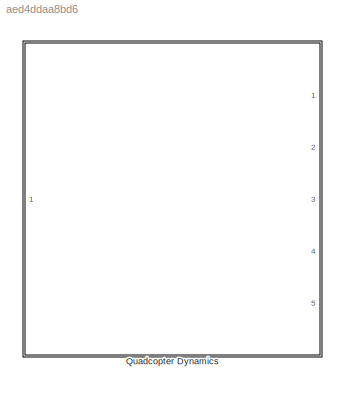
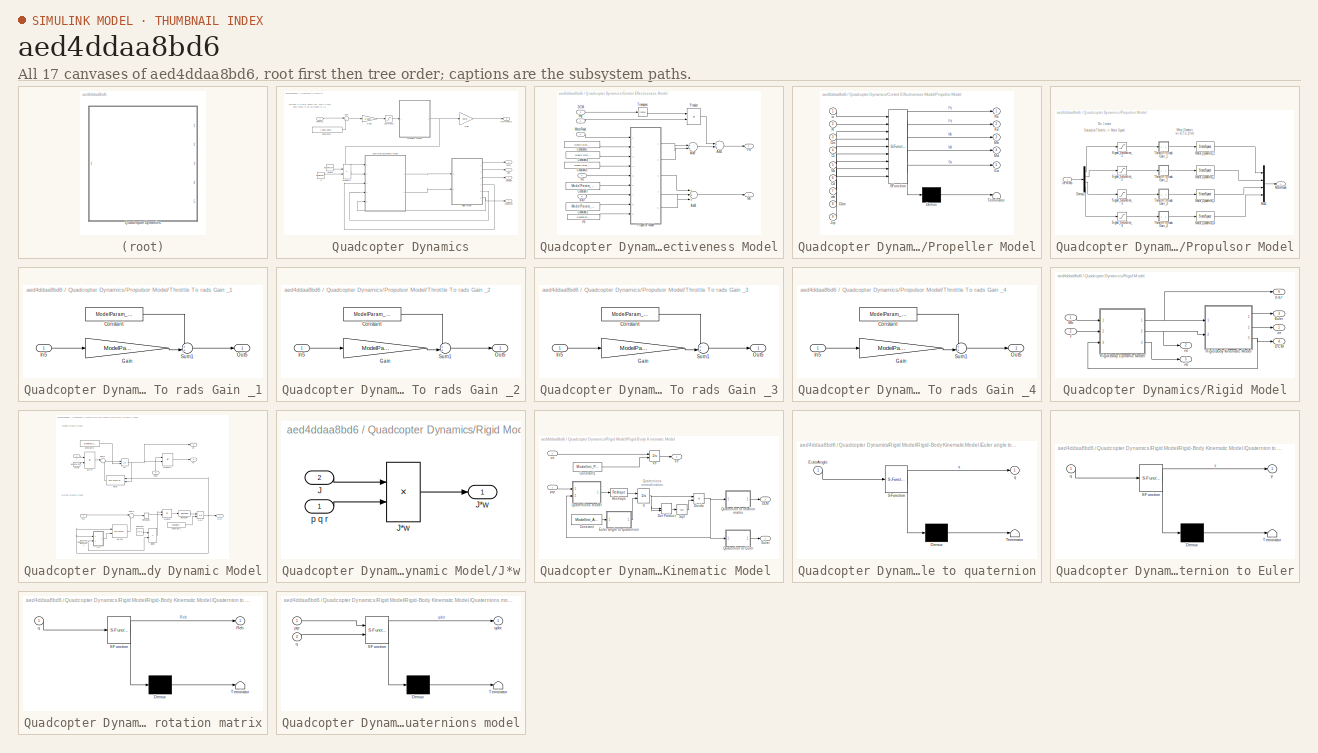
[diagram: thumbnail index - all 17 canvases of the model, root first then tree order]
MODEL slx_aed4ddaa8bd6
KIND model
CONFIG AbsTol = auto
CONFIG EnableMultiTasking = off
CONFIG FixedStep = auto
CONFIG MaxStep = auto
CONFIG MinStep = auto
CONFIG RelTol = 1e-3
CONFIG SampleTimeConstraint = Unconstrained
CONFIG Solver = VariableStepAuto
CONFIG SolverName = VariableStepAuto
CONFIG StartTime = 0.0
CONFIG StopTime = 10.0
BLOCK [SubSystem] Quadcopter Dynamics
  Ports = [1, 5]
  RequestExecContextInheritance = off
  Variant = off
BLOCK [Outport] Quadcopter Dynamics/AngEuler
  IconDisplay = Port number
  Port = 3
BLOCK [Outport] Quadcopter Dynamics/AngRateB
  IconDisplay = Port number
  Port = 4
BLOCK [Constant] Quadcopter Dynamics/Constant2
  Value = [1000,1000,1000,1000]
BLOCK [SubSystem] Quadcopter Dynamics/Control Effectiveness Model
  Ports = [5, 2]
  RequestExecContextInheritance = off
  Variant = off
BLOCK [Sum] Quadcopter Dynamics/Control Effectiveness Model/Add1
  InputSameDT = off
  Inputs = +++
  OutDataTypeStr = Inherit: Inherit via internal rule
  Ports = [3, 1]
  SaturateOnIntegerOverflow = off
BLOCK [Sum] Quadcopter Dynamics/Control Effectiveness Model/Add2
  InputSameDT = off
  OutDataTypeStr = Inherit: Inherit via internal rule
  Ports = [2, 1]
  SaturateOnIntegerOverflow = off
BLOCK [Sum] Quadcopter Dynamics/Control Effectiveness Model/Add7
  InputSameDT = off
  OutDataTypeStr = Inherit: Inherit via internal rule
  Ports = [2, 1]
  SaturateOnIntegerOverflow = off
BLOCK [Constant] Quadcopter Dynamics/Control Effectiveness Model/Constant1
  Value = ModelParam_uavCCm
BLOCK [Constant] Quadcopter Dynamics/Control Effectiveness Model/Constant3
  Value = ModelParam_rotorCt
BLOCK [Constant] Quadcopter Dynamics/Control Effectiveness Model/Constant4
  Value = ModelParam_rotorCm
BLOCK [Constant] Quadcopter Dynamics/Control Effectiveness Model/Constant5
  Value = ModelParam_uavR
BLOCK [Constant] Quadcopter Dynamics/Control Effectiveness Model/Constant7
  Value = ModelParam_uavCd
BLOCK [Inport] Quadcopter Dynamics/Control Effectiveness Model/DCM
  IconDisplay = Port number
  Port = 3
BLOCK [Outport] Quadcopter Dynamics/Control Effectiveness Model/Fb
  IconDisplay = Port number
  Port = 2
BLOCK [Constant] Quadcopter Dynamics/Control Effectiveness Model/Jrp
  Value = ModelParam_motorJm
BLOCK [Outport] Quadcopter Dynamics/Control Effectiveness Model/Mb
  IconDisplay = Port number
BLOCK [Inport] Quadcopter Dynamics/Control Effectiveness Model/MotorRads
  IconDisplay = Port number
BLOCK [Product] Quadcopter Dynamics/Control Effectiveness Model/Product
  InputSameDT = off
  Multiplication = Matrix(*)
  OutDataTypeStr = Inherit: Inherit via internal rule
  Ports = [2, 1]
  RndMeth = Floor
  SaturateOnIntegerOverflow = off
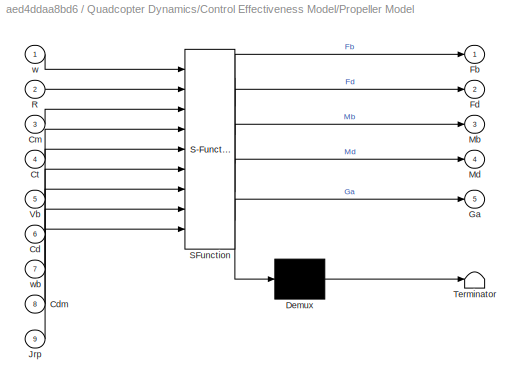
BLOCK [SubSystem] Quadcopter Dynamics/Control Effectiveness Model/Propeller Model
  ErrorFcn = Stateflow.Translate.translate
  PermitHierarchicalResolution = ExplicitOnly
  Ports = [9, 5]
  RequestExecContextInheritance = off
  SFBlockType = MATLAB Function
  TreatAsAtomicUnit = on
  Variant = off
BLOCK [Demux] Quadcopter Dynamics/Control Effectiveness Model/Propeller Model/ Demux 
  Outputs = 1
  Ports = [1, 1]
BLOCK [S-Function] Quadcopter Dynamics/Control Effectiveness Model/Propeller Model/ SFunction 
  EnableBusSupport = on
  FunctionName = sf_sfun
  PortCounts = [9 6]
  Ports = [9, 6]
  SFcnIsStateOwnerBlock = off
  SFunctionDeploymentMode = off
  Tag = Stateflow S-Function dynamics 13
BLOCK [Terminator] Quadcopter Dynamics/Control Effectiveness Model/Propeller Model/ Terminator 
BLOCK [Inport] Quadcopter Dynamics/Control Effectiveness Model/Propeller Model/Cd
  IconDisplay = Port number
  Port = 6
BLOCK [Inport] Quadcopter Dynamics/Control Effectiveness Model/Propeller Model/Cdm
  IconDisplay = Port number
  Port = 8
BLOCK [Inport] Quadcopter Dynamics/Control Effectiveness Model/Propeller Model/Cm
  IconDisplay = Port number
  Port = 3
BLOCK [Inport] Quadcopter Dynamics/Control Effectiveness Model/Propeller Model/Ct
  IconDisplay = Port number
  Port = 4
BLOCK [Outport] Quadcopter Dynamics/Control Effectiveness Model/Propeller Model/Fb
  IconDisplay = Port number
BLOCK [Outport] Quadcopter Dynamics/Control Effectiveness Model/Propeller Model/Fd
  IconDisplay = Port number
  Port = 2
BLOCK [Outport] Quadcopter Dynamics/Control Effectiveness Model/Propeller Model/Ga
  IconDisplay = Port number
  Port = 5
BLOCK [Inport] Quadcopter Dynamics/Control Effectiveness Model/Propeller Model/Jrp
  IconDisplay = Port number
  Port = 9
BLOCK [Outport] Quadcopter Dynamics/Control Effectiveness Model/Propeller Model/Mb
  IconDisplay = Port number
  Port = 3
BLOCK [Outport] Quadcopter Dynamics/Control Effectiveness Model/Propeller Model/Md
  IconDisplay = Port number
  Port = 4
BLOCK [Inport] Quadcopter Dynamics/Control Effectiveness Model/Propeller Model/R
  IconDisplay = Port number
  Port = 2
BLOCK [Inport] Quadcopter Dynamics/Control Effectiveness Model/Propeller Model/Vb
  IconDisplay = Port number
  Port = 5
BLOCK [Inport] Quadcopter Dynamics/Control Effectiveness Model/Propeller Model/w
  IconDisplay = Port number
BLOCK [Inport] Quadcopter Dynamics/Control Effectiveness Model/Propeller Model/wb
  IconDisplay = Port number
  Port = 7
BLOCK [Math] Quadcopter Dynamics/Control Effectiveness Model/Transpose
  Operator = transpose
  Ports = [1, 1]
BLOCK [Inport] Quadcopter Dynamics/Control Effectiveness Model/Vb
  IconDisplay = Port number
  Port = 4
BLOCK [Inport] Quadcopter Dynamics/Control Effectiveness Model/mg
  IconDisplay = Port number
  Port = 2
BLOCK [Inport] Quadcopter Dynamics/Control Effectiveness Model/p.q,r
  IconDisplay = Port number
  Port = 5
BLOCK [Gain] Quadcopter Dynamics/Gain
  Gain = 30/pi
  OutDataTypeStr = Inherit: Inherit via internal rule
  ParamDataTypeStr = Inherit: Inherit via internal rule
  SaturateOnIntegerOverflow = off
BLOCK [Gain] Quadcopter Dynamics/Gain1
  Gain = 1/1000
  OutDataTypeStr = Inherit: Inherit via internal rule
  ParamDataTypeStr = Inherit: Inherit via internal rule
  SaturateOnIntegerOverflow = off
BLOCK [Outport] Quadcopter Dynamics/MotorRPMS
  IconDisplay = Port number
  Port = 5
BLOCK [Outport] Quadcopter Dynamics/PosE
  IconDisplay = Port number
BLOCK [Product] Quadcopter Dynamics/Product1
  InputSameDT = off
  OutDataTypeStr = Inherit: Inherit via internal rule
  Ports = [2, 1]
  RndMeth = Floor
  SaturateOnIntegerOverflow = off
BLOCK [SubSystem] Quadcopter Dynamics/Propulsor Model
  Ports = [1, 1]
  RequestExecContextInheritance = off
  Variant = off
BLOCK [Demux] Quadcopter Dynamics/Propulsor Model/Demux1
  DisplayOption = bar
  Ports = [1, 4]
BLOCK [Outport] Quadcopter Dynamics/Propulsor Model/MotorRads
  IconDisplay = Port number
BLOCK [StateSpace] Quadcopter Dynamics/Propulsor Model/Motor_Dynamics_1
  A = -1/ModelParam_motorT
  C = 1/ModelParam_motorT
  D = 0
  InitialCondition = ModelInit_Rads*ModelParam_motorT
  Ports = [1, 1]
BLOCK [StateSpace] Quadcopter Dynamics/Propulsor Model/Motor_Dynamics_2
  A = -1/ModelParam_motorT
  C = 1/ModelParam_motorT
  D = 0
  InitialCondition = ModelInit_Rads*ModelParam_motorT
  Ports = [1, 1]
BLOCK [StateSpace] Quadcopter Dynamics/Propulsor Model/Motor_Dynamics_3
  A = -1/ModelParam_motorT
  C = 1/ModelParam_motorT
  D = 0
  InitialCondition = ModelInit_Rads*ModelParam_motorT
  Ports = [1, 1]
BLOCK [StateSpace] Quadcopter Dynamics/Propulsor Model/Motor_Dynamics_4
  A = -1/ModelParam_motorT
  C = 1/ModelParam_motorT
  D = 0
  InitialCondition = ModelInit_Rads*ModelParam_motorT
  Ports = [1, 1]
BLOCK [Mux] Quadcopter Dynamics/Propulsor Model/Mux1
  DisplayOption = bar
  Ports = [4, 1]
BLOCK [Saturate] Quadcopter Dynamics/Propulsor Model/Signal_Saturation_1
  InputPortMap = u0
  LowerLimit = 0
  Ports = [1, 1]
  UpperLimit = 1
BLOCK [Saturate] Quadcopter Dynamics/Propulsor Model/Signal_Saturation_2
  InputPortMap = u0
  LowerLimit = 0
  Ports = [1, 1]
  UpperLimit = 1
BLOCK [Saturate] Quadcopter Dynamics/Propulsor Model/Signal_Saturation_3
  InputPortMap = u0
  LowerLimit = 0
  Ports = [1, 1]
  UpperLimit = 1
BLOCK [Saturate] Quadcopter Dynamics/Propulsor Model/Signal_Saturation_4
  InputPortMap = u0
  LowerLimit = 0
  Ports = [1, 1]
  UpperLimit = 1
BLOCK [SubSystem] Quadcopter Dynamics/Propulsor Model/Throttle To rads Gain _1
  Ports = [1, 1]
  RequestExecContextInheritance = off
  ShowPortLabels = none
  Variant = off
BLOCK [Constant] Quadcopter Dynamics/Propulsor Model/Throttle To rads Gain _1/Constant
  Value = ModelParam_motorWb
BLOCK [Gain] Quadcopter Dynamics/Propulsor Model/Throttle To rads Gain _1/Gain
  Gain = ModelParam_motorCr
  OutDataTypeStr = Inherit: Inherit via internal rule
  ParamDataTypeStr = Inherit: Inherit via internal rule
  SaturateOnIntegerOverflow = off
BLOCK [Inport] Quadcopter Dynamics/Propulsor Model/Throttle To rads Gain _1/In5
  IconDisplay = Port number
BLOCK [Outport] Quadcopter Dynamics/Propulsor Model/Throttle To rads Gain _1/Out5
  IconDisplay = Port number
BLOCK [Sum] Quadcopter Dynamics/Propulsor Model/Throttle To rads Gain _1/Sum1
  IconShape = round
  InputSameDT = off
  Inputs = ++|
  OutDataTypeStr = Inherit: Inherit via internal rule
  Ports = [2, 1]
  SaturateOnIntegerOverflow = off
BLOCK [SubSystem] Quadcopter Dynamics/Propulsor Model/Throttle To rads Gain _2
  Ports = [1, 1]
  RequestExecContextInheritance = off
  ShowPortLabels = none
  Variant = off
BLOCK [Constant] Quadcopter Dynamics/Propulsor Model/Throttle To rads Gain _2/Constant
  Value = ModelParam_motorWb
BLOCK [Gain] Quadcopter Dynamics/Propulsor Model/Throttle To rads Gain _2/Gain
  Gain = ModelParam_motorCr
  OutDataTypeStr = Inherit: Inherit via internal rule
  ParamDataTypeStr = Inherit: Inherit via internal rule
  SaturateOnIntegerOverflow = off
BLOCK [Inport] Quadcopter Dynamics/Propulsor Model/Throttle To rads Gain _2/In5
  IconDisplay = Port number
BLOCK [Outport] Quadcopter Dynamics/Propulsor Model/Throttle To rads Gain _2/Out5
  IconDisplay = Port number
BLOCK [Sum] Quadcopter Dynamics/Propulsor Model/Throttle To rads Gain _2/Sum1
  IconShape = round
  InputSameDT = off
  Inputs = ++|
  OutDataTypeStr = Inherit: Inherit via internal rule
  Ports = [2, 1]
  SaturateOnIntegerOverflow = off
BLOCK [SubSystem] Quadcopter Dynamics/Propulsor Model/Throttle To rads Gain _3
  Ports = [1, 1]
  RequestExecContextInheritance = off
  ShowPortLabels = none
  Variant = off
BLOCK [Constant] Quadcopter Dynamics/Propulsor Model/Throttle To rads Gain _3/Constant
  Value = ModelParam_motorWb
BLOCK [Gain] Quadcopter Dynamics/Propulsor Model/Throttle To rads Gain _3/Gain
  Gain = ModelParam_motorCr
  OutDataTypeStr = Inherit: Inherit via internal rule
  ParamDataTypeStr = Inherit: Inherit via internal rule
  SaturateOnIntegerOverflow = off
BLOCK [Inport] Quadcopter Dynamics/Propulsor Model/Throttle To rads Gain _3/In5
  IconDisplay = Port number
BLOCK [Outport] Quadcopter Dynamics/Propulsor Model/Throttle To rads Gain _3/Out5
  IconDisplay = Port number
BLOCK [Sum] Quadcopter Dynamics/Propulsor Model/Throttle To rads Gain _3/Sum1
  IconShape = round
  InputSameDT = off
  Inputs = ++|
  OutDataTypeStr = Inherit: Inherit via internal rule
  Ports = [2, 1]
  SaturateOnIntegerOverflow = off
BLOCK [SubSystem] Quadcopter Dynamics/Propulsor Model/Throttle To rads Gain _4
  Ports = [1, 1]
  RequestExecContextInheritance = off
  ShowPortLabels = none
  Variant = off
BLOCK [Constant] Quadcopter Dynamics/Propulsor Model/Throttle To rads Gain _4/Constant
  Value = ModelParam_motorWb
BLOCK [Gain] Quadcopter Dynamics/Propulsor Model/Throttle To rads Gain _4/Gain
  Gain = ModelParam_motorCr
  OutDataTypeStr = Inherit: Inherit via internal rule
  ParamDataTypeStr = Inherit: Inherit via internal rule
  SaturateOnIntegerOverflow = off
BLOCK [Inport] Quadcopter Dynamics/Propulsor Model/Throttle To rads Gain _4/In5
  IconDisplay = Port number
BLOCK [Outport] Quadcopter Dynamics/Propulsor Model/Throttle To rads Gain _4/Out5
  IconDisplay = Port number
BLOCK [Sum] Quadcopter Dynamics/Propulsor Model/Throttle To rads Gain _4/Sum1
  IconShape = round
  InputSameDT = off
  Inputs = ++|
  OutDataTypeStr = Inherit: Inherit via internal rule
  Ports = [2, 1]
  SaturateOnIntegerOverflow = off
BLOCK [Inport] Quadcopter Dynamics/Propulsor Model/inPWMs
  IconDisplay = Port number
BLOCK [SubSystem] Quadcopter Dynamics/Rigid Model
  Ports = [2, 6]
  RequestExecContextInheritance = off
  Variant = off
BLOCK [Outport] Quadcopter Dynamics/Rigid Model/DCM
  IconDisplay = Port number
  Port = 4
BLOCK [Outport] Quadcopter Dynamics/Rigid Model/Euler
  IconDisplay = Port number
  Port = 3
BLOCK [Inport] Quadcopter Dynamics/Rigid Model/Mb
  IconDisplay = Port number
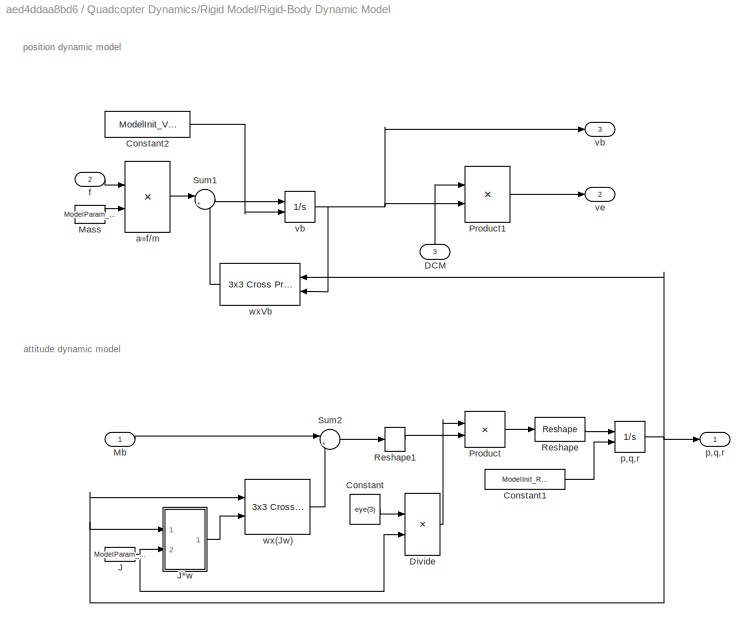
BLOCK [SubSystem] Quadcopter Dynamics/Rigid Model/Rigid-Body Dynamic Model
  Ports = [3, 3]
  RequestExecContextInheritance = off
  Variant = off
BLOCK [Constant] Quadcopter Dynamics/Rigid Model/Rigid-Body Dynamic Model/ Mass 
  Value = ModelParam_uavMass
BLOCK [Constant] Quadcopter Dynamics/Rigid Model/Rigid-Body Dynamic Model/Constant
  Value = eye(3)
BLOCK [Constant] Quadcopter Dynamics/Rigid Model/Rigid-Body Dynamic Model/Constant1
  Value = ModelInit_RateB
BLOCK [Constant] Quadcopter Dynamics/Rigid Model/Rigid-Body Dynamic Model/Constant2
  Value = ModelInit_VelB
BLOCK [Inport] Quadcopter Dynamics/Rigid Model/Rigid-Body Dynamic Model/DCM
  IconDisplay = Port number
  Port = 3
BLOCK [Product] Quadcopter Dynamics/Rigid Model/Rigid-Body Dynamic Model/Divide
  InputSameDT = off
  Inputs = */
  Multiplication = Matrix(*)
  OutDataTypeStr = Inherit: Inherit via internal rule
  Ports = [2, 1]
  RndMeth = Floor
  SaturateOnIntegerOverflow = off
BLOCK [Constant] Quadcopter Dynamics/Rigid Model/Rigid-Body Dynamic Model/J 
  Value = ModelParam_uavJ
BLOCK [SubSystem] Quadcopter Dynamics/Rigid Model/Rigid-Body Dynamic Model/J*w
  Ports = [2, 1]
  RequestExecContextInheritance = off
  Variant = off
BLOCK [Inport] Quadcopter Dynamics/Rigid Model/Rigid-Body Dynamic Model/J*w/J
  IconDisplay = Port number
  Port = 2
BLOCK [Product] Quadcopter Dynamics/Rigid Model/Rigid-Body Dynamic Model/J*w/J*w
  InputSameDT = off
  Multiplication = Matrix(*)
  OutDataTypeStr = Inherit: Inherit via internal rule
  Ports = [2, 1]
  RndMeth = Floor
  SaturateOnIntegerOverflow = off
BLOCK [Outport] Quadcopter Dynamics/Rigid Model/Rigid-Body Dynamic Model/J*w/J*w 
  IconDisplay = Port number
BLOCK [Inport] Quadcopter Dynamics/Rigid Model/Rigid-Body Dynamic Model/J*w/p q r
  IconDisplay = Port number
BLOCK [Inport] Quadcopter Dynamics/Rigid Model/Rigid-Body Dynamic Model/Mb
  IconDisplay = Port number
BLOCK [Product] Quadcopter Dynamics/Rigid Model/Rigid-Body Dynamic Model/Product
  InputSameDT = off
  Multiplication = Matrix(*)
  OutDataTypeStr = Inherit: Inherit via internal rule
  Ports = [2, 1]
  RndMeth = Floor
  SaturateOnIntegerOverflow = off
BLOCK [Product] Quadcopter Dynamics/Rigid Model/Rigid-Body Dynamic Model/Product1
  InputSameDT = off
  Multiplication = Matrix(*)
  OutDataTypeStr = Inherit: Inherit via internal rule
  Ports = [2, 1]
  RndMeth = Floor
  SaturateOnIntegerOverflow = off
BLOCK [Reshape] Quadcopter Dynamics/Rigid Model/Rigid-Body Dynamic Model/Reshape
  OutputDimensionality = Customize
  OutputDimensions = [3,1]
  Ports = [1, 1]
BLOCK [Reshape] Quadcopter Dynamics/Rigid Model/Rigid-Body Dynamic Model/Reshape1
  OutputDimensionality = Column vector (2-D)
  Ports = [1, 1]
BLOCK [Sum] Quadcopter Dynamics/Rigid Model/Rigid-Body Dynamic Model/Sum1
  IconShape = round
  InputSameDT = off
  Inputs = |+-
  OutDataTypeStr = Inherit: Inherit via internal rule
  Ports = [2, 1]
  SaturateOnIntegerOverflow = off
BLOCK [Sum] Quadcopter Dynamics/Rigid Model/Rigid-Body Dynamic Model/Sum2
  IconShape = round
  InputSameDT = off
  Inputs = |+-
  OutDataTypeStr = Inherit: Inherit via internal rule
  Ports = [2, 1]
  SaturateOnIntegerOverflow = off
BLOCK [Product] Quadcopter Dynamics/Rigid Model/Rigid-Body Dynamic Model/a=f//m
  InputSameDT = off
  Inputs = */
  OutDataTypeStr = Inherit: Inherit via internal rule
  Ports = [2, 1]
  RndMeth = Floor
  SaturateOnIntegerOverflow = off
BLOCK [Inport] Quadcopter Dynamics/Rigid Model/Rigid-Body Dynamic Model/f
  IconDisplay = Port number
  Port = 2
BLOCK [Integrator] Quadcopter Dynamics/Rigid Model/Rigid-Body Dynamic Model/p,q,r
  InitialConditionSource = external
  Ports = [2, 1]
BLOCK [Outport] Quadcopter Dynamics/Rigid Model/Rigid-Body Dynamic Model/p,q,r 
  IconDisplay = Port number
BLOCK [Integrator] Quadcopter Dynamics/Rigid Model/Rigid-Body Dynamic Model/vb
  InitialConditionSource = external
  Ports = [2, 1]
BLOCK [Outport] Quadcopter Dynamics/Rigid Model/Rigid-Body Dynamic Model/vb 
  IconDisplay = Port number
  Port = 3
BLOCK [Outport] Quadcopter Dynamics/Rigid Model/Rigid-Body Dynamic Model/ve
  IconDisplay = Port number
  Port = 2
BLOCK [Reference] Quadcopter Dynamics/Rigid Model/Rigid-Body Dynamic Model/wx(Jw)  REF=sharedutil/3x3 Cross Product
  Ports = [2, 1]
  SourceBlock = sharedutil/3x3 Cross Product
  SourceProductBaseCode = AE
  SourceProductName = Aerospace Blockset
  SourceType = CrossProduct
BLOCK [Reference] Quadcopter Dynamics/Rigid Model/Rigid-Body Dynamic Model/wxVb  REF=sharedutil/3x3 Cross Product
  Ports = [2, 1]
  SourceBlock = sharedutil/3x3 Cross Product
  SourceProductBaseCode = AE
  SourceProductName = Aerospace Blockset
  SourceType = CrossProduct
BLOCK [SubSystem] Quadcopter Dynamics/Rigid Model/Rigid-Body Kinematic Model 
  Ports = [2, 3]
  RequestExecContextInheritance = off
  Variant = off
BLOCK [Constant] Quadcopter Dynamics/Rigid Model/Rigid-Body Kinematic Model /Constant
  Value = ModelInit_AngEuler
BLOCK [Constant] Quadcopter Dynamics/Rigid Model/Rigid-Body Kinematic Model /Constant1
  Value = ModelInit_PosE
BLOCK [Outport] Quadcopter Dynamics/Rigid Model/Rigid-Body Kinematic Model /DCM
  IconDisplay = Port number
  Port = 3
BLOCK [Product] Quadcopter Dynamics/Rigid Model/Rigid-Body Kinematic Model /Divide
  InputSameDT = off
  Inputs = */
  OutDataTypeStr = Inherit: Inherit via internal rule
  Ports = [2, 1]
  RndMeth = Floor
  SaturateOnIntegerOverflow = off
BLOCK [DotProduct] Quadcopter Dynamics/Rigid Model/Rigid-Body Kinematic Model /Dot Product
  OutDataTypeStr = Inherit: Inherit via internal rule
BLOCK [Outport] Quadcopter Dynamics/Rigid Model/Rigid-Body Kinematic Model /Euler
  IconDisplay = Port number
BLOCK [SubSystem] Quadcopter Dynamics/Rigid Model/Rigid-Body Kinematic Model /Euler angle to quaternion
  ErrorFcn = Stateflow.Translate.translate
  PermitHierarchicalResolution = ExplicitOnly
  Ports = [1, 1]
  RequestExecContextInheritance = off
  SFBlockType = MATLAB Function
  Variant = off
BLOCK [Demux] Quadcopter Dynamics/Rigid Model/Rigid-Body Kinematic Model /Euler angle to quaternion/ Demux 
  Outputs = 1
  Ports = [1, 1]
BLOCK [S-Function] Quadcopter Dynamics/Rigid Model/Rigid-Body Kinematic Model /Euler angle to quaternion/ SFunction 
  EnableBusSupport = on
  FunctionName = sf_sfun
  PortCounts = [1 2]
  Ports = [1, 2]
  SFcnIsStateOwnerBlock = off
  SFunctionDeploymentMode = off
  Tag = Stateflow S-Function dynamics 11
BLOCK [Terminator] Quadcopter Dynamics/Rigid Model/Rigid-Body Kinematic Model /Euler angle to quaternion/ Terminator 
BLOCK [Inport] Quadcopter Dynamics/Rigid Model/Rigid-Body Kinematic Model /Euler angle to quaternion/EulerAngle
  IconDisplay = Port number
BLOCK [Outport] Quadcopter Dynamics/Rigid Model/Rigid-Body Kinematic Model /Euler angle to quaternion/q
  IconDisplay = Port number
BLOCK [SubSystem] Quadcopter Dynamics/Rigid Model/Rigid-Body Kinematic Model /Quaternion to Euler
  ErrorFcn = Stateflow.Translate.translate
  PermitHierarchicalResolution = ExplicitOnly
  Ports = [1, 1]
  RequestExecContextInheritance = off
  SFBlockType = MATLAB Function
  Variant = off
BLOCK [Demux] Quadcopter Dynamics/Rigid Model/Rigid-Body Kinematic Model /Quaternion to Euler/ Demux 
  Outputs = 1
  Ports = [1, 1]
BLOCK [S-Function] Quadcopter Dynamics/Rigid Model/Rigid-Body Kinematic Model /Quaternion to Euler/ SFunction 
  EnableBusSupport = on
  FunctionName = sf_sfun
  PortCounts = [1 2]
  Ports = [1, 2]
  SFcnIsStateOwnerBlock = off
  SFunctionDeploymentMode = off
  Tag = Stateflow S-Function dynamics 9
BLOCK [Terminator] Quadcopter Dynamics/Rigid Model/Rigid-Body Kinematic Model /Quaternion to Euler/ Terminator 
BLOCK [Inport] Quadcopter Dynamics/Rigid Model/Rigid-Body Kinematic Model /Quaternion to Euler/q
  IconDisplay = Port number
BLOCK [Outport] Quadcopter Dynamics/Rigid Model/Rigid-Body Kinematic Model /Quaternion to Euler/y
  IconDisplay = Port number
BLOCK [SubSystem] Quadcopter Dynamics/Rigid Model/Rigid-Body Kinematic Model /Quaternion to rotation matrix
  ErrorFcn = Stateflow.Translate.translate
  PermitHierarchicalResolution = ExplicitOnly
  Ports = [1, 1]
  RequestExecContextInheritance = off
  SFBlockType = MATLAB Function
  Variant = off
BLOCK [Demux] Quadcopter Dynamics/Rigid Model/Rigid-Body Kinematic Model /Quaternion to rotation matrix/ Demux 
  Outputs = 1
  Ports = [1, 1]
BLOCK [S-Function] Quadcopter Dynamics/Rigid Model/Rigid-Body Kinematic Model /Quaternion to rotation matrix/ SFunction 
  EnableBusSupport = on
  FunctionName = sf_sfun
  PortCounts = [1 2]
  Ports = [1, 2]
  SFcnIsStateOwnerBlock = off
  SFunctionDeploymentMode = off
  Tag = Stateflow S-Function dynamics 8
BLOCK [Terminator] Quadcopter Dynamics/Rigid Model/Rigid-Body Kinematic Model /Quaternion to rotation matrix/ Terminator 
BLOCK [Outport] Quadcopter Dynamics/Rigid Model/Rigid-Body Kinematic Model /Quaternion to rotation matrix/Reb
  IconDisplay = Port number
BLOCK [Inport] Quadcopter Dynamics/Rigid Model/Rigid-Body Kinematic Model /Quaternion to rotation matrix/q
  IconDisplay = Port number
BLOCK [SubSystem] Quadcopter Dynamics/Rigid Model/Rigid-Body Kinematic Model /Quaternions model
  ErrorFcn = Stateflow.Translate.translate
  PermitHierarchicalResolution = ExplicitOnly
  Ports = [2, 1]
  RequestExecContextInheritance = off
  SFBlockType = MATLAB Function
  TreatAsAtomicUnit = on
  Variant = off
BLOCK [Demux] Quadcopter Dynamics/Rigid Model/Rigid-Body Kinematic Model /Quaternions model/ Demux 
  Outputs = 1
  Ports = [1, 1]
BLOCK [S-Function] Quadcopter Dynamics/Rigid Model/Rigid-Body Kinematic Model /Quaternions model/ SFunction 
  EnableBusSupport = on
  FunctionName = sf_sfun
  PortCounts = [2 2]
  Ports = [2, 2]
  SFcnIsStateOwnerBlock = off
  SFunctionDeploymentMode = off
  Tag = Stateflow S-Function dynamics 10
BLOCK [Terminator] Quadcopter Dynamics/Rigid Model/Rigid-Body Kinematic Model /Quaternions model/ Terminator 
BLOCK [Inport] Quadcopter Dynamics/Rigid Model/Rigid-Body Kinematic Model /Quaternions model/pqr
  IconDisplay = Port number
BLOCK [Inport] Quadcopter Dynamics/Rigid Model/Rigid-Body Kinematic Model /Quaternions model/q
  IconDisplay = Port number
  Port = 2
BLOCK [Outport] Quadcopter Dynamics/Rigid Model/Rigid-Body Kinematic Model /Quaternions model/qdot
  IconDisplay = Port number
BLOCK [Reshape] Quadcopter Dynamics/Rigid Model/Rigid-Body Kinematic Model /Reshape
  OutputDimensionality = Customize
  OutputDimensions = [4,1]
  Ports = [1, 1]
BLOCK [Sqrt] Quadcopter Dynamics/Rigid Model/Rigid-Body Kinematic Model /Sqrt
BLOCK [Inport] Quadcopter Dynamics/Rigid Model/Rigid-Body Kinematic Model /pqr
  IconDisplay = Port number
BLOCK [Integrator] Quadcopter Dynamics/Rigid Model/Rigid-Body Kinematic Model /q
  InitialConditionSource = external
  Ports = [2, 1]
BLOCK [Inport] Quadcopter Dynamics/Rigid Model/Rigid-Body Kinematic Model /ve
  IconDisplay = Port number
  Port = 2
BLOCK [Integrator] Quadcopter Dynamics/Rigid Model/Rigid-Body Kinematic Model /xe
  InitialConditionSource = external
  Ports = [2, 1]
BLOCK [Outport] Quadcopter Dynamics/Rigid Model/Rigid-Body Kinematic Model /xe 
  IconDisplay = Port number
  Port = 2
BLOCK [Inport] Quadcopter Dynamics/Rigid Model/f
  IconDisplay = Port number
  Port = 2
BLOCK [Outport] Quadcopter Dynamics/Rigid Model/p,q,r 
  IconDisplay = Port number
  Port = 6
BLOCK [Outport] Quadcopter Dynamics/Rigid Model/vb 
  IconDisplay = Port number
  Port = 5
BLOCK [Outport] Quadcopter Dynamics/Rigid Model/ve
  IconDisplay = Port number
  Port = 2
BLOCK [Outport] Quadcopter Dynamics/Rigid Model/xe 
  IconDisplay = Port number
BLOCK [Saturate] Quadcopter Dynamics/Saturation
  InputPortMap = u0
  LowerLimit = 0
  Ports = [1, 1]
  UpperLimit = 1
BLOCK [Sum] Quadcopter Dynamics/Sum
  IconShape = round
  InputSameDT = off
  Inputs = |+-
  OutDataTypeStr = Inherit: Inherit via internal rule
  Ports = [2, 1]
  SaturateOnIntegerOverflow = off
BLOCK [Outport] Quadcopter Dynamics/VelE
  IconDisplay = Port number
  Port = 2
BLOCK [Constant] Quadcopter Dynamics/g
  Value = [0,0,ModelParam_envGravityAcc]
BLOCK [Inport] Quadcopter Dynamics/inPWMs
  IconDisplay = Port number
BLOCK [Constant] Quadcopter Dynamics/mass
  Value = ModelParam_uavMass
ANNOTATION Quadcopter Dynamics: The input is a PWM signal from 1000 to 2000, which needs to be normalized to 0~1.
ANNOTATION Quadcopter Dynamics/Propulsor Model: No. 1 motor Saturation Throttle --> Motor Speed
ANNOTATION Quadcopter Dynamics/Propulsor Model: Motor Dynamic w=1/(Ts+1)*wb
ANNOTATION Quadcopter Dynamics/Rigid Model/Rigid-Body Dynamic Model: attitude dynamic model
ANNOTATION Quadcopter Dynamics/Rigid Model/Rigid-Body Dynamic Model: position dynamic model
ANNOTATION Quadcopter Dynamics/Rigid Model/Rigid-Body Kinematic Model : Quaternions normalization
LINE Quadcopter Dynamics/Constant2:1 -> Quadcopter Dynamics/Sum:2
LINE Quadcopter Dynamics/Control Effectiveness Model/Add1:1 -> Quadcopter Dynamics/Control Effectiveness Model/Mb:1
LINE Quadcopter Dynamics/Control Effectiveness Model/Add2:1 -> Quadcopter Dynamics/Control Effectiveness Model/Fb:1
LINE Quadcopter Dynamics/Control Effectiveness Model/Add7:1 -> Quadcopter Dynamics/Control Effectiveness Model/Add2:2
LINE Quadcopter Dynamics/Control Effectiveness Model/Constant1:1 -> Quadcopter Dynamics/Control Effectiveness Model/Propeller Model:8
LINE Quadcopter Dynamics/Control Effectiveness Model/Constant3:1 -> Quadcopter Dynamics/Control Effectiveness Model/Propeller Model:4
LINE Quadcopter Dynamics/Control Effectiveness Model/Constant4:1 -> Quadcopter Dynamics/Control Effectiveness Model/Propeller Model:3
LINE Quadcopter Dynamics/Control Effectiveness Model/Constant5:1 -> Quadcopter Dynamics/Control Effectiveness Model/Propeller Model:2
LINE Quadcopter Dynamics/Control Effectiveness Model/Constant7:1 -> Quadcopter Dynamics/Control Effectiveness Model/Propeller Model:6
LINE Quadcopter Dynamics/Control Effectiveness Model/DCM:1 -> Quadcopter Dynamics/Control Effectiveness Model/Transpose:1
LINE Quadcopter Dynamics/Control Effectiveness Model/Jrp:1 -> Quadcopter Dynamics/Control Effectiveness Model/Propeller Model:9
LINE Quadcopter Dynamics/Control Effectiveness Model/MotorRads:1 -> Quadcopter Dynamics/Control Effectiveness Model/Propeller Model:1
LINE Quadcopter Dynamics/Control Effectiveness Model/Product:1 -> Quadcopter Dynamics/Control Effectiveness Model/Add2:1
LINE Quadcopter Dynamics/Control Effectiveness Model/Propeller Model:1 -> Quadcopter Dynamics/Control Effectiveness Model/Add7:1
LINE Quadcopter Dynamics/Control Effectiveness Model/Propeller Model:2 -> Quadcopter Dynamics/Control Effectiveness Model/Add7:2
LINE Quadcopter Dynamics/Control Effectiveness Model/Propeller Model:3 -> Quadcopter Dynamics/Control Effectiveness Model/Add1:1
LINE Quadcopter Dynamics/Control Effectiveness Model/Propeller Model:4 -> Quadcopter Dynamics/Control Effectiveness Model/Add1:2
LINE Quadcopter Dynamics/Control Effectiveness Model/Propeller Model:5 -> Quadcopter Dynamics/Control Effectiveness Model/Add1:3
LINE Quadcopter Dynamics/Control Effectiveness Model/Transpose:1 -> Quadcopter Dynamics/Control Effectiveness Model/Product:1
LINE Quadcopter Dynamics/Control Effectiveness Model/Vb:1 -> Quadcopter Dynamics/Control Effectiveness Model/Propeller Model:5
LINE Quadcopter Dynamics/Control Effectiveness Model/mg:1 -> Quadcopter Dynamics/Control Effectiveness Model/Product:2
LINE Quadcopter Dynamics/Control Effectiveness Model/p.q,r:1 -> Quadcopter Dynamics/Control Effectiveness Model/Propeller Model:7
LINE Quadcopter Dynamics/Control Effectiveness Model:1 -> Quadcopter Dynamics/Rigid Model:1
LINE Quadcopter Dynamics/Control Effectiveness Model:2 -> Quadcopter Dynamics/Rigid Model:2
LINE Quadcopter Dynamics/Gain1:1 -> Quadcopter Dynamics/Saturation:1
LINE Quadcopter Dynamics/Gain:1 -> Quadcopter Dynamics/MotorRPMS:1
LINE Quadcopter Dynamics/Product1:1 -> Quadcopter Dynamics/Control Effectiveness Model:2
LINE Quadcopter Dynamics/Propulsor Model/Demux1:1 -> Quadcopter Dynamics/Propulsor Model/Signal_Saturation_1:1
LINE Quadcopter Dynamics/Propulsor Model/Demux1:2 -> Quadcopter Dynamics/Propulsor Model/Signal_Saturation_2:1
LINE Quadcopter Dynamics/Propulsor Model/Demux1:3 -> Quadcopter Dynamics/Propulsor Model/Signal_Saturation_3:1
LINE Quadcopter Dynamics/Propulsor Model/Demux1:4 -> Quadcopter Dynamics/Propulsor Model/Signal_Saturation_4:1
LINE Quadcopter Dynamics/Propulsor Model/Motor_Dynamics_1:1 -> Quadcopter Dynamics/Propulsor Model/Mux1:1
LINE Quadcopter Dynamics/Propulsor Model/Motor_Dynamics_2:1 -> Quadcopter Dynamics/Propulsor Model/Mux1:2
LINE Quadcopter Dynamics/Propulsor Model/Motor_Dynamics_3:1 -> Quadcopter Dynamics/Propulsor Model/Mux1:3
LINE Quadcopter Dynamics/Propulsor Model/Motor_Dynamics_4:1 -> Quadcopter Dynamics/Propulsor Model/Mux1:4
LINE Quadcopter Dynamics/Propulsor Model/Mux1:1 -> Quadcopter Dynamics/Propulsor Model/MotorRads:1
LINE Quadcopter Dynamics/Propulsor Model/Signal_Saturation_1:1 -> Quadcopter Dynamics/Propulsor Model/Throttle To rads Gain _1:1
LINE Quadcopter Dynamics/Propulsor Model/Signal_Saturation_2:1 -> Quadcopter Dynamics/Propulsor Model/Throttle To rads Gain _2:1
LINE Quadcopter Dynamics/Propulsor Model/Signal_Saturation_3:1 -> Quadcopter Dynamics/Propulsor Model/Throttle To rads Gain _3:1
LINE Quadcopter Dynamics/Propulsor Model/Signal_Saturation_4:1 -> Quadcopter Dynamics/Propulsor Model/Throttle To rads Gain _4:1
LINE Quadcopter Dynamics/Propulsor Model/Throttle To rads Gain _1/Constant:1 -> Quadcopter Dynamics/Propulsor Model/Throttle To rads Gain _1/Sum1:1
LINE Quadcopter Dynamics/Propulsor Model/Throttle To rads Gain _1/Gain:1 -> Quadcopter Dynamics/Propulsor Model/Throttle To rads Gain _1/Sum1:2
LINE Quadcopter Dynamics/Propulsor Model/Throttle To rads Gain _1/In5:1 -> Quadcopter Dynamics/Propulsor Model/Throttle To rads Gain _1/Gain:1
LINE Quadcopter Dynamics/Propulsor Model/Throttle To rads Gain _1/Sum1:1 -> Quadcopter Dynamics/Propulsor Model/Throttle To rads Gain _1/Out5:1
LINE Quadcopter Dynamics/Propulsor Model/Throttle To rads Gain _1:1 -> Quadcopter Dynamics/Propulsor Model/Motor_Dynamics_1:1
LINE Quadcopter Dynamics/Propulsor Model/Throttle To rads Gain _2/Constant:1 -> Quadcopter Dynamics/Propulsor Model/Throttle To rads Gain _2/Sum1:1
LINE Quadcopter Dynamics/Propulsor Model/Throttle To rads Gain _2/Gain:1 -> Quadcopter Dynamics/Propulsor Model/Throttle To rads Gain _2/Sum1:2
LINE Quadcopter Dynamics/Propulsor Model/Throttle To rads Gain _2/In5:1 -> Quadcopter Dynamics/Propulsor Model/Throttle To rads Gain _2/Gain:1
LINE Quadcopter Dynamics/Propulsor Model/Throttle To rads Gain _2/Sum1:1 -> Quadcopter Dynamics/Propulsor Model/Throttle To rads Gain _2/Out5:1
LINE Quadcopter Dynamics/Propulsor Model/Throttle To rads Gain _2:1 -> Quadcopter Dynamics/Propulsor Model/Motor_Dynamics_2:1
LINE Quadcopter Dynamics/Propulsor Model/Throttle To rads Gain _3/Constant:1 -> Quadcopter Dynamics/Propulsor Model/Throttle To rads Gain _3/Sum1:1
LINE Quadcopter Dynamics/Propulsor Model/Throttle To rads Gain _3/Gain:1 -> Quadcopter Dynamics/Propulsor Model/Throttle To rads Gain _3/Sum1:2
LINE Quadcopter Dynamics/Propulsor Model/Throttle To rads Gain _3/In5:1 -> Quadcopter Dynamics/Propulsor Model/Throttle To rads Gain _3/Gain:1
LINE Quadcopter Dynamics/Propulsor Model/Throttle To rads Gain _3/Sum1:1 -> Quadcopter Dynamics/Propulsor Model/Throttle To rads Gain _3/Out5:1
LINE Quadcopter Dynamics/Propulsor Model/Throttle To rads Gain _3:1 -> Quadcopter Dynamics/Propulsor Model/Motor_Dynamics_3:1
LINE Quadcopter Dynamics/Propulsor Model/Throttle To rads Gain _4/Constant:1 -> Quadcopter Dynamics/Propulsor Model/Throttle To rads Gain _4/Sum1:1
LINE Quadcopter Dynamics/Propulsor Model/Throttle To rads Gain _4/Gain:1 -> Quadcopter Dynamics/Propulsor Model/Throttle To rads Gain _4/Sum1:2
LINE Quadcopter Dynamics/Propulsor Model/Throttle To rads Gain _4/In5:1 -> Quadcopter Dynamics/Propulsor Model/Throttle To rads Gain _4/Gain:1
LINE Quadcopter Dynamics/Propulsor Model/Throttle To rads Gain _4/Sum1:1 -> Quadcopter Dynamics/Propulsor Model/Throttle To rads Gain _4/Out5:1
LINE Quadcopter Dynamics/Propulsor Model/Throttle To rads Gain _4:1 -> Quadcopter Dynamics/Propulsor Model/Motor_Dynamics_4:1
LINE Quadcopter Dynamics/Propulsor Model/inPWMs:1 -> Quadcopter Dynamics/Propulsor Model/Demux1:1
NET Quadcopter Dynamics/Propulsor Model:1 -> Quadcopter Dynamics/Control Effectiveness Model:1, Quadcopter Dynamics/Gain:1
LINE Quadcopter Dynamics/Rigid Model/Mb:1 -> Quadcopter Dynamics/Rigid Model/Rigid-Body Dynamic Model:1
LINE Quadcopter Dynamics/Rigid Model/Rigid-Body Dynamic Model/ Mass :1 -> Quadcopter Dynamics/Rigid Model/Rigid-Body Dynamic Model/a=f//m:2
LINE Quadcopter Dynamics/Rigid Model/Rigid-Body Dynamic Model/Constant1:1 -> Quadcopter Dynamics/Rigid Model/Rigid-Body Dynamic Model/p,q,r:2
LINE Quadcopter Dynamics/Rigid Model/Rigid-Body Dynamic Model/Constant2:1 -> Quadcopter Dynamics/Rigid Model/Rigid-Body Dynamic Model/vb:2
LINE Quadcopter Dynamics/Rigid Model/Rigid-Body Dynamic Model/Constant:1 -> Quadcopter Dynamics/Rigid Model/Rigid-Body Dynamic Model/Divide:1
LINE Quadcopter Dynamics/Rigid Model/Rigid-Body Dynamic Model/DCM:1 -> Quadcopter Dynamics/Rigid Model/Rigid-Body Dynamic Model/Product1:1
LINE Quadcopter Dynamics/Rigid Model/Rigid-Body Dynamic Model/Divide:1 -> Quadcopter Dynamics/Rigid Model/Rigid-Body Dynamic Model/Product:1
NET Quadcopter Dynamics/Rigid Model/Rigid-Body Dynamic Model/J :1 -> Quadcopter Dynamics/Rigid Model/Rigid-Body Dynamic Model/Divide:2, Quadcopter Dynamics/Rigid Model/Rigid-Body Dynamic Model/J*w:2
LINE Quadcopter Dynamics/Rigid Model/Rigid-Body Dynamic Model/J*w/J*w:1 -> Quadcopter Dynamics/Rigid Model/Rigid-Body Dynamic Model/J*w/J*w :1
LINE Quadcopter Dynamics/Rigid Model/Rigid-Body Dynamic Model/J*w/J:1 -> Quadcopter Dynamics/Rigid Model/Rigid-Body Dynamic Model/J*w/J*w:1
LINE Quadcopter Dynamics/Rigid Model/Rigid-Body Dynamic Model/J*w/p q r:1 -> Quadcopter Dynamics/Rigid Model/Rigid-Body Dynamic Model/J*w/J*w:2
LINE Quadcopter Dynamics/Rigid Model/Rigid-Body Dynamic Model/J*w:1 -> Quadcopter Dynamics/Rigid Model/Rigid-Body Dynamic Model/wx(Jw):2
LINE Quadcopter Dynamics/Rigid Model/Rigid-Body Dynamic Model/Mb:1 -> Quadcopter Dynamics/Rigid Model/Rigid-Body Dynamic Model/Sum2:1
LINE Quadcopter Dynamics/Rigid Model/Rigid-Body Dynamic Model/Product1:1 -> Quadcopter Dynamics/Rigid Model/Rigid-Body Dynamic Model/ve:1
LINE Quadcopter Dynamics/Rigid Model/Rigid-Body Dynamic Model/Product:1 -> Quadcopter Dynamics/Rigid Model/Rigid-Body Dynamic Model/Reshape:1
LINE Quadcopter Dynamics/Rigid Model/Rigid-Body Dynamic Model/Reshape1:1 -> Quadcopter Dynamics/Rigid Model/Rigid-Body Dynamic Model/Product:2
LINE Quadcopter Dynamics/Rigid Model/Rigid-Body Dynamic Model/Reshape:1 -> Quadcopter Dynamics/Rigid Model/Rigid-Body Dynamic Model/p,q,r:1
LINE Quadcopter Dynamics/Rigid Model/Rigid-Body Dynamic Model/Sum1:1 -> Quadcopter Dynamics/Rigid Model/Rigid-Body Dynamic Model/vb:1
LINE Quadcopter Dynamics/Rigid Model/Rigid-Body Dynamic Model/Sum2:1 -> Quadcopter Dynamics/Rigid Model/Rigid-Body Dynamic Model/Reshape1:1
LINE Quadcopter Dynamics/Rigid Model/Rigid-Body Dynamic Model/a=f//m:1 -> Quadcopter Dynamics/Rigid Model/Rigid-Body Dynamic Model/Sum1:1
LINE Quadcopter Dynamics/Rigid Model/Rigid-Body Dynamic Model/f:1 -> Quadcopter Dynamics/Rigid Model/Rigid-Body Dynamic Model/a=f//m:1
NET Quadcopter Dynamics/Rigid Model/Rigid-Body Dynamic Model/p,q,r:1 -> Quadcopter Dynamics/Rigid Model/Rigid-Body Dynamic Model/J*w:1, Quadcopter Dynamics/Rigid Model/Rigid-Body Dynamic Model/p,q,r :1, Quadcopter Dynamics/Rigid Model/Rigid-Body Dynamic Model/wx(Jw):1, Quadcopter Dynamics/Rigid Model/Rigid-Body Dynamic Model/wxVb:1
NET Quadcopter Dynamics/Rigid Model/Rigid-Body Dynamic Model/vb:1 -> Quadcopter Dynamics/Rigid Model/Rigid-Body Dynamic Model/Product1:2, Quadcopter Dynamics/Rigid Model/Rigid-Body Dynamic Model/vb :1, Quadcopter Dynamics/Rigid Model/Rigid-Body Dynamic Model/wxVb:2
LINE Quadcopter Dynamics/Rigid Model/Rigid-Body Dynamic Model/wx(Jw):1 -> Quadcopter Dynamics/Rigid Model/Rigid-Body Dynamic Model/Sum2:2
LINE Quadcopter Dynamics/Rigid Model/Rigid-Body Dynamic Model/wxVb:1 -> Quadcopter Dynamics/Rigid Model/Rigid-Body Dynamic Model/Sum1:2
NET Quadcopter Dynamics/Rigid Model/Rigid-Body Dynamic Model:1 -> Quadcopter Dynamics/Rigid Model/Rigid-Body Kinematic Model :1, Quadcopter Dynamics/Rigid Model/p,q,r :1
NET Quadcopter Dynamics/Rigid Model/Rigid-Body Dynamic Model:2 -> Quadcopter Dynamics/Rigid Model/Rigid-Body Kinematic Model :2, Quadcopter Dynamics/Rigid Model/ve:1
LINE Quadcopter Dynamics/Rigid Model/Rigid-Body Dynamic Model:3 -> Quadcopter Dynamics/Rigid Model/vb :1
LINE Quadcopter Dynamics/Rigid Model/Rigid-Body Kinematic Model /Constant1:1 -> Quadcopter Dynamics/Rigid Model/Rigid-Body Kinematic Model /xe:2
LINE Quadcopter Dynamics/Rigid Model/Rigid-Body Kinematic Model /Constant:1 -> Quadcopter Dynamics/Rigid Model/Rigid-Body Kinematic Model /Euler angle to quaternion:1
NET Quadcopter Dynamics/Rigid Model/Rigid-Body Kinematic Model /Divide:1 -> Quadcopter Dynamics/Rigid Model/Rigid-Body Kinematic Model /Quaternion to Euler:1, Quadcopter Dynamics/Rigid Model/Rigid-Body Kinematic Model /Quaternion to rotation matrix:1, Quadcopter Dynamics/Rigid Model/Rigid-Body Kinematic Model /Quaternions model:2
LINE Quadcopter Dynamics/Rigid Model/Rigid-Body Kinematic Model /Dot Product:1 -> Quadcopter Dynamics/Rigid Model/Rigid-Body Kinematic Model /Sqrt:1
LINE Quadcopter Dynamics/Rigid Model/Rigid-Body Kinematic Model /Euler angle to quaternion:1 -> Quadcopter Dynamics/Rigid Model/Rigid-Body Kinematic Model /q:2
LINE Quadcopter Dynamics/Rigid Model/Rigid-Body Kinematic Model /Quaternion to Euler:1 -> Quadcopter Dynamics/Rigid Model/Rigid-Body Kinematic Model /Euler:1
LINE Quadcopter Dynamics/Rigid Model/Rigid-Body Kinematic Model /Quaternion to rotation matrix:1 -> Quadcopter Dynamics/Rigid Model/Rigid-Body Kinematic Model /DCM:1
LINE Quadcopter Dynamics/Rigid Model/Rigid-Body Kinematic Model /Quaternions model:1 -> Quadcopter Dynamics/Rigid Model/Rigid-Body Kinematic Model /Reshape:1
LINE Quadcopter Dynamics/Rigid Model/Rigid-Body Kinematic Model /Reshape:1 -> Quadcopter Dynamics/Rigid Model/Rigid-Body Kinematic Model /q:1
LINE Quadcopter Dynamics/Rigid Model/Rigid-Body Kinematic Model /Sqrt:1 -> Quadcopter Dynamics/Rigid Model/Rigid-Body Kinematic Model /Divide:2
LINE Quadcopter Dynamics/Rigid Model/Rigid-Body Kinematic Model /pqr:1 -> Quadcopter Dynamics/Rigid Model/Rigid-Body Kinematic Model /Quaternions model:1
NET Quadcopter Dynamics/Rigid Model/Rigid-Body Kinematic Model /q:1 -> Quadcopter Dynamics/Rigid Model/Rigid-Body Kinematic Model /Divide:1, Quadcopter Dynamics/Rigid Model/Rigid-Body Kinematic Model /Dot Product:1, Quadcopter Dynamics/Rigid Model/Rigid-Body Kinematic Model /Dot Product:2
LINE Quadcopter Dynamics/Rigid Model/Rigid-Body Kinematic Model /ve:1 -> Quadcopter Dynamics/Rigid Model/Rigid-Body Kinematic Model /xe:1
LINE Quadcopter Dynamics/Rigid Model/Rigid-Body Kinematic Model /xe:1 -> Quadcopter Dynamics/Rigid Model/Rigid-Body Kinematic Model /xe :1
LINE Quadcopter Dynamics/Rigid Model/Rigid-Body Kinematic Model :1 -> Quadcopter Dynamics/Rigid Model/Euler:1
LINE Quadcopter Dynamics/Rigid Model/Rigid-Body Kinematic Model :2 -> Quadcopter Dynamics/Rigid Model/xe :1
NET Quadcopter Dynamics/Rigid Model/Rigid-Body Kinematic Model :3 -> Quadcopter Dynamics/Rigid Model/DCM:1, Quadcopter Dynamics/Rigid Model/Rigid-Body Dynamic Model:3
LINE Quadcopter Dynamics/Rigid Model/f:1 -> Quadcopter Dynamics/Rigid Model/Rigid-Body Dynamic Model:2
LINE Quadcopter Dynamics/Rigid Model:1 -> Quadcopter Dynamics/PosE:1
LINE Quadcopter Dynamics/Rigid Model:2 -> Quadcopter Dynamics/VelE:1
LINE Quadcopter Dynamics/Rigid Model:3 -> Quadcopter Dynamics/AngEuler:1
LINE Quadcopter Dynamics/Rigid Model:4 -> Quadcopter Dynamics/Control Effectiveness Model:3
LINE Quadcopter Dynamics/Rigid Model:5 -> Quadcopter Dynamics/Control Effectiveness Model:4
NET Quadcopter Dynamics/Rigid Model:6 -> Quadcopter Dynamics/AngRateB:1, Quadcopter Dynamics/Control Effectiveness Model:5
LINE Quadcopter Dynamics/Saturation:1 -> Quadcopter Dynamics/Propulsor Model:1
LINE Quadcopter Dynamics/Sum:1 -> Quadcopter Dynamics/Gain1:1
LINE Quadcopter Dynamics/g:1 -> Quadcopter Dynamics/Product1:2
LINE Quadcopter Dynamics/inPWMs:1 -> Quadcopter Dynamics/Sum:1
LINE Quadcopter Dynamics/mass:1 -> Quadcopter Dynamics/Product1:1
note: NET lines group one-source signal fan-out (src -> all destinations, sorted); 1:1 wires keep LINE
CHART Quadcopter Dynamics/Rigid Model/Rigid-Body Kinematic Model /Quaternion to rotation matrix states=1 transitions=1
  STATE_LABEL 'eML_blk_kernel()'
  STATE_LABEL 'SCRIPT:\nfunction Reb = fcn(q)\n%Function description;\n%  The rotation matrix of the Aircraft-Body Coordinate Frame (ABCF) to the\n%  Earth-Fixed Coordinate Frame (EFCF) is obtained from the quaternions\nReb = [q(1)*q(1) + q(2)*q(2) - q(3)*q(3) - q(4)*q(4), 2*(q(2)*q(3) - q(1)*q(4)), 2*(q(2)*q(4) + q(1)*q(3))\n           2*(q(2)*q(3) + q(1)*q(4)), q(1)*q(1) - q(2)*q(2) + q(3)*q(3) - q(4)*q(4), 2*(q(3)*...<+135ch>'
CHART Quadcopter Dynamics/Rigid Model/Rigid-Body Kinematic Model /Quaternion to Euler states=1 transitions=1
  STATE_LABEL 'eML_blk_kernel()'
  STATE_LABEL 'SCRIPT:\nfunction y = fcn(q)\n %Function description:\n%  Quaternions to Euler\nphi = atan2(2*(q(1)*q(2) + q(3)*q(4)), (1 - 2*(q(2)*q(2) + q(3)*q(3))));\ntheta = asin(2*(q(1)*q(3) - q(2)*q(4)));\npsi = atan2(2*(q(1)*q(4) + q(2)*q(3)), (1 - 2*(q(3)*q(3) + q(4)*q(4))));\ny = [phi theta psi];\n'
CHART Quadcopter Dynamics/Rigid Model/Rigid-Body Kinematic Model /Quaternions model states=1 transitions=1
  STATE_LABEL 'eML_blk_kernel()'
  STATE_LABEL 'SCRIPT:\nfunction qdot = fcn(pqr, q)\n%Function description:\n%  Quaternions model\nqdot = 0.5*[0, -pqr(1), -pqr(2), -pqr(3); pqr(1), 0, pqr(3), -pqr(2); pqr(2), -pqr(3), 0, pqr(1); pqr(3), pqr(2), -pqr(1), 0]*q;\n'
CHART Quadcopter Dynamics/Rigid Model/Rigid-Body Kinematic Model /Euler angle to quaternion states=1 transitions=1
  STATE_LABEL 'eML_blk_kernel()'
  STATE_LABEL 'SCRIPT:\nfunction q = fcn(EulerAngle)\n%Function description:\n%  Get quaternions from Euler angle\nq0 =  cos(EulerAngle(1)/2)*cos(EulerAngle(2)/2)*cos(EulerAngle(3)/2) + sin(EulerAngle(1)/2)*sin((EulerAngle(2)/2))*sin((EulerAngle(3)/2));\nq1 = sin(EulerAngle(1)/2)*cos(EulerAngle(2)/2)*cos(EulerAngle(3)/2) - cos(EulerAngle(1)/2)*sin((EulerAngle(2)/2))*sin((EulerAngle(3)/2));\nq2 = cos(EulerAngle(1)/2)*s...<+270ch>'
CHART Quadcopter Dynamics/Control Effectiveness Model/Propeller Model states=1 transitions=1
  STATE_LABEL 'eML_blk_kernel()'
  STATE_LABEL 'SCRIPT:\nfunction [Fb, Fd, Mb, Md, Ga] = fcn(w, R, Cm, Ct, Vb, Cd,wb, Cdm, Jrp)\n %Function description:\n %  Obtain the force and torque acting on the body. The airframe of the\n %  quadrotor is as follows:\n %3↓   1↑\n %  \\ /\n %  / \\\n %2↑   4↓\n %↑ stands for counterclockwise and ↓stands for clockwise.\n %Input：\n %  w: motor speed，unit：rad/s\n %  R: body radius(m)\n %  Cm: torque coefficient\n %  Ct: thrus...<+953ch>'
